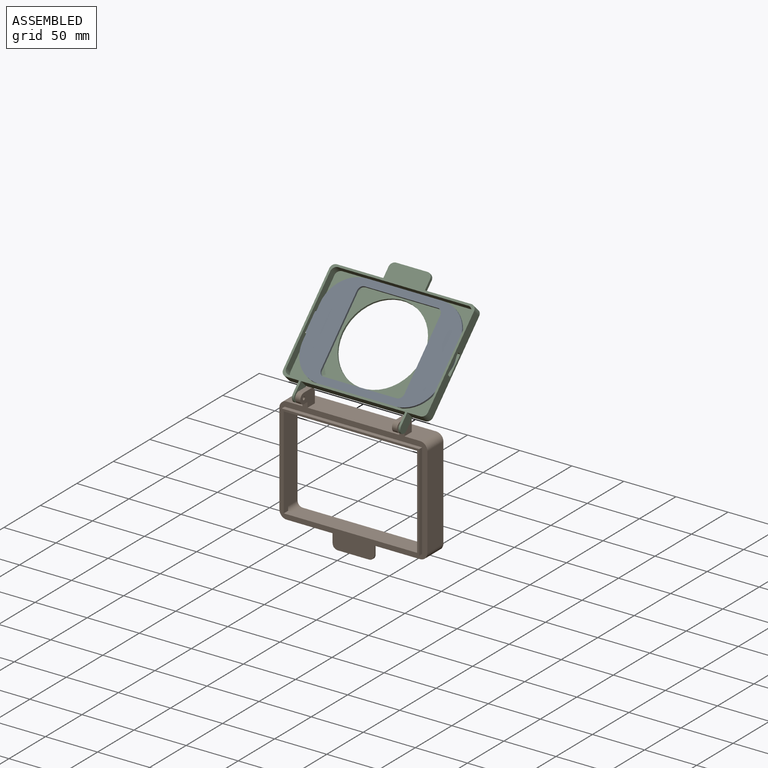
[diagram: assembled view]
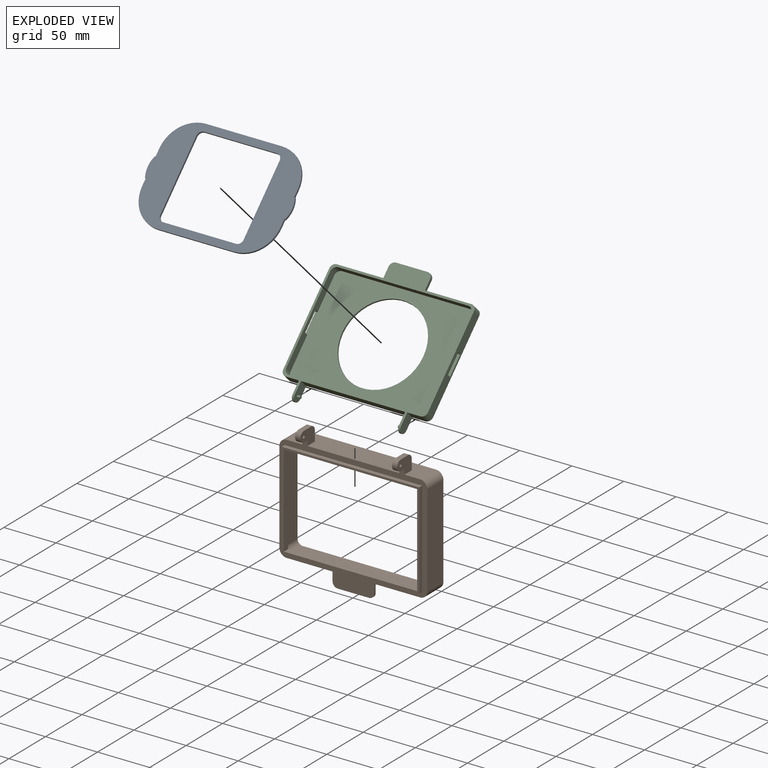
[diagram: exploded view]
GUIDED TOUR — MATED ASSEMBLY (Onshape document 4a9b68949fbbeb46d2230906, AutoMate assembly 4a9b68949fbbeb46d2230906_c47c5c0a0e4a723a2216a127_96fbe044a2d722a06e7ecc93_default)

This assembly has 3 components, labeled P0..P2 below (a component is one placed occurrence of a part; the same part can appear more than once), held together by 2 mates. A mate is a constraint between two components; its type names the relative motion it leaves free:
  FASTENED — locks the two components together rigidly (no relative motion),
  REVOLUTE — leaves rotation about the listed axis free (a hinge).
Axis/direction vectors are unit vectors and 'through' points are millimeter coordinates, both in the assembly's world frame.

MATES
  1. FASTENED "Fastened 1": P2 <-> P0, direction (0.000, -0.710, 0.704) through (0.46, 40.32, 101.63) mm
  2. REVOLUTE "Revolute 1": P1 <-> P2, axis (1.000, 0.000, 0.000) through (49.46, -4.92, 60.23) mm

ASSEMBLY ORDER
  1. P2 — the base component [order verified]
  2. P1 [order verified]
  3. P0 [order verified]
Order-tag legend:
  [order verified] — this step's position reverses a verified removal order: the component was checked to insert without passing through the ones already placed.

Of the 3 components, 2 carry the full construction recipe — the FeatureScript program that regenerates the part's solid from scratch; the rest are supplied as boundary geometry only.
Each toured component is shown spotlighted twice — in the assembled view, then in the exploded view, where a leader line traces a displaced component back to its assembled socket (saturated green if recipe-attached, orange if geometry-only; every other component desaturated gray) — followed by its recipe or geometry summary and the mates that hold it.
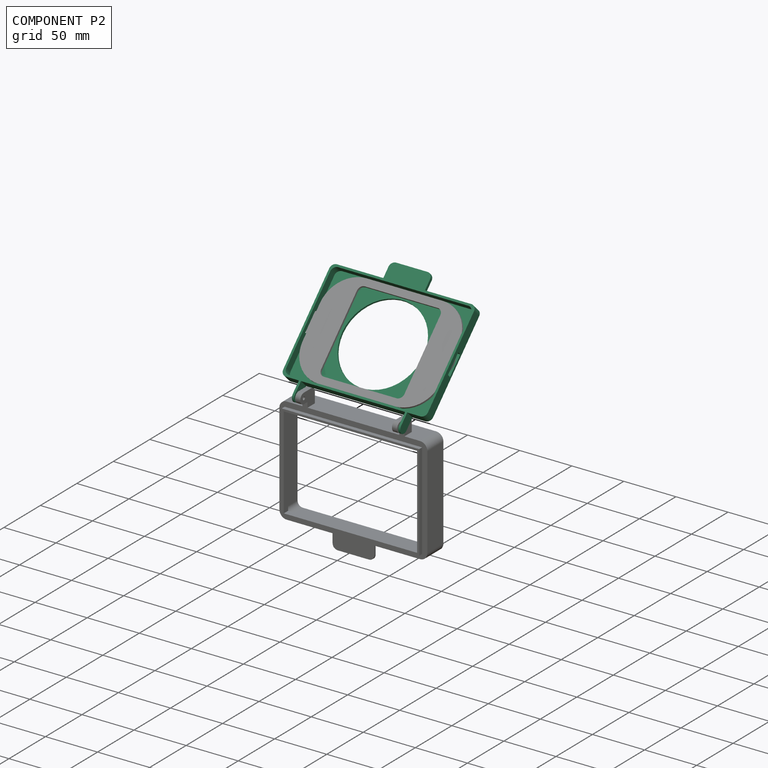
[diagram: component P2 — assembled]
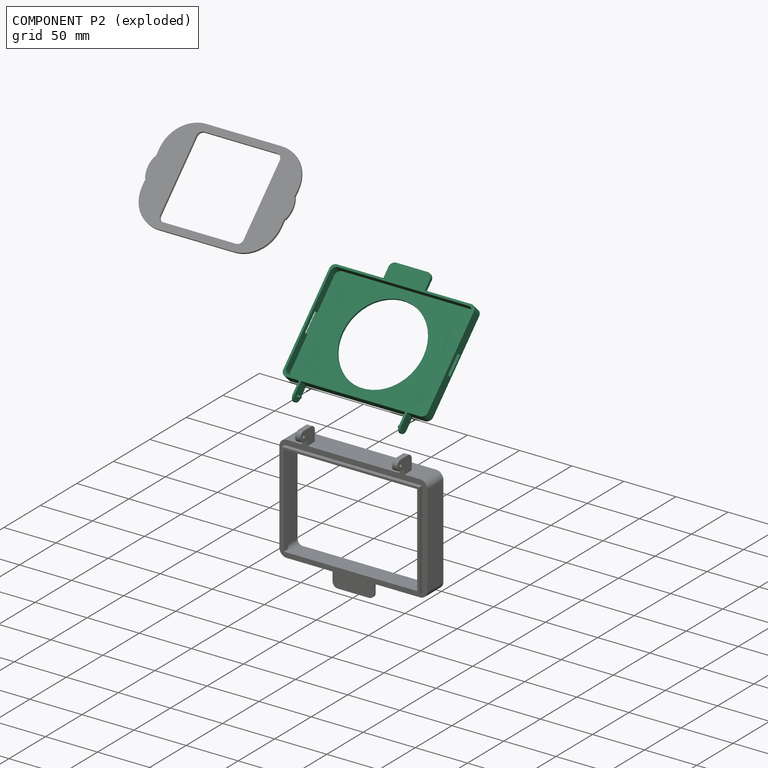
[diagram: component P2 — exploded]
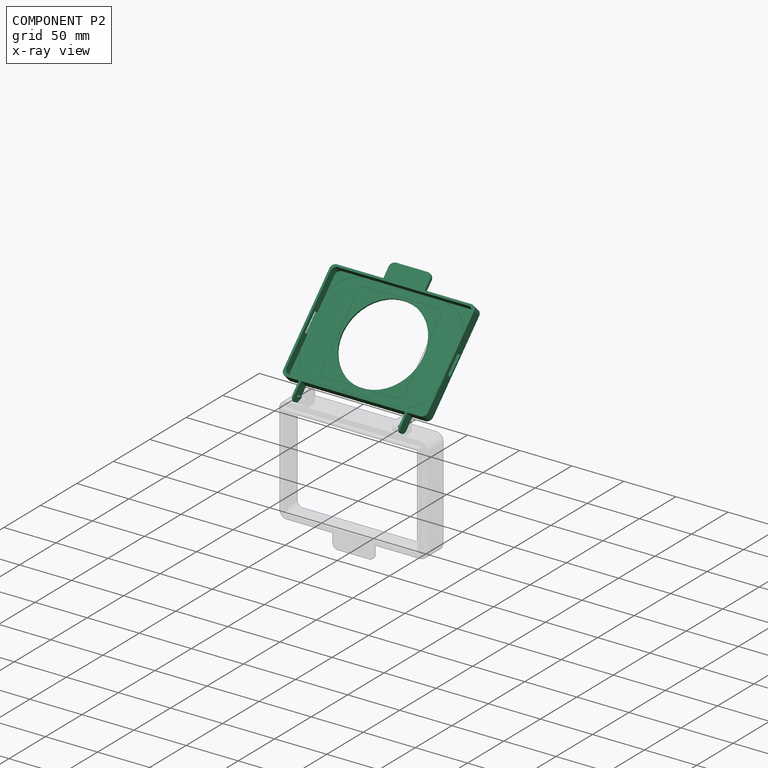
[diagram: component P2 — x-ray view]
COMPONENT P2 — recipe-attached (CADFS 00177686, mesh-verified: the recipe's output STEP matches this component's geometry to below the mesh-comparison resolution (tessellation chordal tolerance ~0.287 mm)).
Held by: FASTENED mate "Fastened 1" to P0; REVOLUTE mate "Revolute 1" to P1.
Construction recipe (FeatureScript — the CAD program that rebuilds this solid; sketch coordinates are in the units given by the * unit suffixes, e.g. mm):

FeatureScript 1511;
import(path : "onshape/std/geometry.fs", version : "1511.0");
import(path : "onshape/std/common.fs", version : "1511.0");
const mm = millimeter;
const VERTEX = EntityType.VERTEX;
const EDGE = EntityType.EDGE;
const FACE = EntityType.FACE;
const BODY = EntityType.BODY;
function v(x, y){return vector(x, y);}
function OD(order){return orderDisambiguation(order);}
function OSD(set){return originalSetDisambiguation(set);}
function TD(topology){return topologyDisambiguation(topology);}
function TDD(query){return trueDependencyDisambiguation(query);}
function sQuery(a, b, c) {return sketchEntityQuery(a, b, c);}

annotation { "Feature Type Name" : "Feature", "Feature Type Description" : "" }
export const myFeature = defineFeature(function(context is Context, id is Id, definition is map)
    precondition{}
    {
        {
            var Q0;
            Q0=qCreatedBy(makeId("Top.planeOp"),FACE);
            var sketch = newSketch(context, id + "F0", { "sketchPlane" : qUnion([Q0])});
            skLineSegment(sketch, "E0.bottom", {"start": v(62.5, 47.75) * mm, "end": v(-62.5, 47.75) * mm});
            skLineSegment(sketch, "E0.top", {"start": v(62.5, -47.75) * mm, "end": v(-62.5, -47.75) * mm});
            skLineSegment(sketch, "E0.left", {"start": v(67.5, 42.75) * mm, "end": v(67.5, -42.75) * mm});
            skLineSegment(sketch, "E0.right", {"start": v(-67.5, 42.75) * mm, "end": v(-67.5, -42.75) * mm});
            skPoint(sketch, "E0.middle", {"position": v(0, 0) * mm});
            skLineSegment(sketch, "E1.0", {"start": v(64.5, 49.75) * mm, "end": v(-64.5, 49.75) * mm});
            skLineSegment(sketch, "E1.1", {"start": v(69.5, 44.75) * mm, "end": v(69.5, -44.75) * mm});
            skLineSegment(sketch, "E1.2", {"start": v(64.5, -49.75) * mm, "end": v(-64.5, -49.75) * mm});
            skLineSegment(sketch, "E1.3", {"start": v(-69.5, 44.75) * mm, "end": v(-69.5, -44.75) * mm});
            skPoint(sketch, "E2.visualSharp", {"position": v(-69.5, -49.75) * mm});
            skArc(sketch, "E2.filletArc", {"start": v(-69.5, -44.75) * mm, "mid": v(-68.04, -48.29) * mm, "end": v(-64.5, -49.75) * mm});
            skPoint(sketch, "E3.visualSharp", {"position": v(-69.5, 49.75) * mm});
            skArc(sketch, "E3.filletArc", {"start": v(-64.5, 49.75) * mm, "mid": v(-68.04, 48.29) * mm, "end": v(-69.5, 44.75) * mm});
            skPoint(sketch, "E4.visualSharp", {"position": v(69.5, -49.75) * mm});
            skArc(sketch, "E4.filletArc", {"start": v(64.5, -49.75) * mm, "mid": v(68.04, -48.29) * mm, "end": v(69.5, -44.75) * mm});
            skPoint(sketch, "E5.visualSharp", {"position": v(69.5, 49.75) * mm});
            skArc(sketch, "E5.filletArc", {"start": v(69.5, 44.75) * mm, "mid": v(68.04, 48.29) * mm, "end": v(64.5, 49.75) * mm});
            skPoint(sketch, "E6.visualSharp", {"position": v(67.5, 47.75) * mm});
            skArc(sketch, "E6.filletArc", {"start": v(67.5, 42.75) * mm, "mid": v(66.04, 46.29) * mm, "end": v(62.5, 47.75) * mm});
            skPoint(sketch, "E7.visualSharp", {"position": v(67.5, -47.75) * mm});
            skArc(sketch, "E7.filletArc", {"start": v(62.5, -47.75) * mm, "mid": v(66.04, -46.29) * mm, "end": v(67.5, -42.75) * mm});
            skPoint(sketch, "E8.visualSharp", {"position": v(-67.5, 47.75) * mm});
            skArc(sketch, "E8.filletArc", {"start": v(-62.5, 47.75) * mm, "mid": v(-66.04, 46.29) * mm, "end": v(-67.5, 42.75) * mm});
            skPoint(sketch, "E9.visualSharp", {"position": v(-67.5, -47.75) * mm});
            skArc(sketch, "E9.filletArc", {"start": v(-67.5, -42.75) * mm, "mid": v(-66.04, -46.29) * mm, "end": v(-62.5, -47.75) * mm});
            skCircle(sketch, "E10", {"center": v(0, 0) * mm, "radius": 39 * mm});
            skSolve(sketch);
        }
        {
            var Q0;
            Q0=makeQuery(id+"F0.imprint","IMPRINT",FACE,{"disambiguationData":[TD([[makeQuery(id+"F0.imprint","IMPRINT",EDGE,{"derivedFrom":sQuery(id+"F0.wireOp",EDGE,"E0.bottom")}),-1.0]])]});
            extrude(context, id + "F1", {"entities" : qUnion([Q0]), "depth" : 10 * mm});
        }
        {
            var Q0;
            Q0=makeQuery(id+"F0.imprint","IMPRINT",FACE,{"disambiguationData":[TD([[makeQuery(id+"F0.imprint","IMPRINT",EDGE,{"derivedFrom":sQuery(id+"F0.wireOp",EDGE,"E0.bottom")}),1.0]])]});
            extrude(context, id + "F2", {"entities" : qUnion([Q0]), "operationType" : NewBodyOperationType.ADD, "depth" : 2 * mm});
        }
        {
            var Q0;
            Q0=makeQuery(id+"F1.opExtrude","CAP_FACE",FACE,{"disambiguationData":[OSD([sQuery(id+"F0.wireOp",EDGE,"E0.bottom"),sQuery(id+"F0.wireOp",EDGE,"E0.top"),sQuery(id+"F0.wireOp",EDGE,"E0.left"),sQuery(id+"F0.wireOp",EDGE,"E0.right"),sQuery(id+"F0.wireOp",EDGE,"E1.0"),sQuery(id+"F0.wireOp",EDGE,"E1.1"),sQuery(id+"F0.wireOp",EDGE,"E1.2"),sQuery(id+"F0.wireOp",EDGE,"E1.3")])],"isStart":false});
            var sketch = newSketch(context, id + "F3", { "sketchPlane" : qUnion([Q0])});
            skLineSegment(sketch, "E11.bottom", {"start": v(-20, -49.75) * mm, "end": v(20, -49.75) * mm});
            skLineSegment(sketch, "E11.top", {"start": v(-15, -64.75) * mm, "end": v(15, -64.75) * mm});
            skLineSegment(sketch, "E11.left", {"start": v(-20, -49.75) * mm, "end": v(-20, -59.75) * mm});
            skLineSegment(sketch, "E11.right", {"start": v(20, -49.75) * mm, "end": v(20, -59.75) * mm});
            skPoint(sketch, "E12", {"position": v(0, -49.75) * mm});
            skPoint(sketch, "E13.visualSharp", {"position": v(-20, -64.75) * mm});
            skArc(sketch, "E13.filletArc", {"start": v(-20, -59.75) * mm, "mid": v(-18.54, -63.29) * mm, "end": v(-15, -64.75) * mm});
            skPoint(sketch, "E14.visualSharp", {"position": v(20, -64.75) * mm});
            skArc(sketch, "E14.filletArc", {"start": v(15, -64.75) * mm, "mid": v(18.54, -63.29) * mm, "end": v(20, -59.75) * mm});
            skSolve(sketch);
        }
        {
            var Q0;
            Q0=makeQuery(id+"F3.imprint","IMPRINT",FACE,{"disambiguationData":[TD([[makeQuery(id+"F3.imprint","IMPRINT",EDGE,{"derivedFrom":sQuery(id+"F3.wireOp",EDGE,"E11.bottom")}),1.0]])]});
            extrude(context, id + "F4", {"entities" : qUnion([Q0]), "operationType" : NewBodyOperationType.ADD, "oppositeDirection" : true, "depth" : 3 * mm});
        }
        {
            var Q0;
            Q0=makeQuery(id+"F1.opExtrude","SWEPT_FACE",FACE,{"disambiguationData":[OSD([sQuery(id+"F0.wireOp",EDGE,"E0.right")])]});
            var sketch = newSketch(context, id + "F5", { "sketchPlane" : qUnion([Q0])});
            skLineSegment(sketch, "E15.bottom", {"start": v(-10, 2) * mm, "end": v(10, 2) * mm});
            skLineSegment(sketch, "E15.top", {"start": v(-10, 6) * mm, "end": v(10, 6) * mm});
            skLineSegment(sketch, "E15.left", {"start": v(-10, 2) * mm, "end": v(-10, 6) * mm});
            skLineSegment(sketch, "E15.right", {"start": v(10, 2) * mm, "end": v(10, 6) * mm});
            skPoint(sketch, "E16", {"position": v(0, 2) * mm});
            skSolve(sketch);
        }
        {
            var Q0;
            Q0=makeQuery(id+"F5.imprint","IMPRINT",FACE,{"disambiguationData":[TD([[makeQuery(id+"F5.imprint","IMPRINT",EDGE,{"derivedFrom":sQuery(id+"F5.wireOp",EDGE,"E15.bottom")}),-1.0]])]});
            extrude(context, id + "F6", {"entities" : qUnion([Q0]), "operationType" : NewBodyOperationType.REMOVE, "endBound" : BoundingType.UP_TO_NEXT, "oppositeDirection" : true, "depth" : 25 * mm});
        }
        {
            var Q0;
            Q0=makeQuery(id+"F1.opExtrude","SWEPT_FACE",FACE,{"disambiguationData":[OSD([sQuery(id+"F0.wireOp",EDGE,"E0.left")])]});
            var sketch = newSketch(context, id + "F7", { "sketchPlane" : qUnion([Q0])});
            skLineSegment(sketch, "E17.0", {"start": v(10, 6) * mm, "end": v(10, 2) * mm});
            skLineSegment(sketch, "E18.0", {"start": v(10, 2) * mm, "end": v(-10, 2) * mm});
            skLineSegment(sketch, "E19.0", {"start": v(-10, 6) * mm, "end": v(10, 6) * mm});
            skLineSegment(sketch, "E20.0", {"start": v(-10, 6) * mm, "end": v(-10, 2) * mm});
            skSolve(sketch);
        }
        {
            var Q0;
            Q0=makeQuery(id+"F7.imprint","IMPRINT",FACE,{"disambiguationData":[TD([[makeQuery(id+"F7.imprint","IMPRINT",EDGE,{"derivedFrom":sQuery(id+"F7.wireOp",EDGE,"E17.0")}),-1.0]])]});
            extrude(context, id + "F8", {"entities" : qUnion([Q0]), "operationType" : NewBodyOperationType.REMOVE, "endBound" : BoundingType.UP_TO_NEXT, "oppositeDirection" : true, "depth" : 25 * mm});
        }
        {
            var Q0;
            Q0=makeQuery(id+"F1.opExtrude","SWEPT_FACE",FACE,{"disambiguationData":[OSD([sQuery(id+"F0.wireOp",EDGE,"E1.0")])]});
            var sketch = newSketch(context, id + "F9", { "sketchPlane" : qUnion([Q0])});
            skLineSegment(sketch, "E21.bottom", {"start": v(52, 0) * mm, "end": v(50, 0) * mm});
            skLineSegment(sketch, "E21.top", {"start": v(52, 10) * mm, "end": v(50, 10) * mm});
            skLineSegment(sketch, "E21.left", {"start": v(52, 0) * mm, "end": v(52, 10) * mm});
            skLineSegment(sketch, "E21.right", {"start": v(50, 0) * mm, "end": v(50, 10) * mm});
            skSolve(sketch);
        }
        {
            var Q0;
            Q0=makeQuery(id+"F9.imprint","IMPRINT",FACE,{"disambiguationData":[TD([[makeQuery(id+"F9.imprint","IMPRINT",EDGE,{"derivedFrom":sQuery(id+"F9.wireOp",EDGE,"E21.bottom")}),1.0]])]});
            var Q1;
            {var subQ0=sQuery(id+"F9.wireOp",EDGE,"c59233ef-eaf8-4a60-9904-21551acb0b020.MirrorCS");Q1=makeQuery(id+"F9.imprint","IMPRINT",FACE,{"disambiguationData":[TD([[makeQuery(id+"F9.imprint","IMPRINT",EDGE,{"derivedFrom":subQ0}),1.0]])]});}
            extrude(context, id + "F10", {"entities" : qUnion([Q0, Q1]), "operationType" : NewBodyOperationType.ADD, "depth" : 11.5 * mm});
        }
        {
            var Q0;
            Q0=makeQuery(id+"F10.opExtrude","SWEPT_FACE",FACE,{"disambiguationData":[OSD([sQuery(id+"F9.wireOp",EDGE,"E21.left")])]});
            var sketch = newSketch(context, id + "F11", { "sketchPlane" : qUnion([Q0])});
            skPoint(sketch, "E22", {"position": v(-61.25, 5) * mm});
            skCircle(sketch, "E23", {"center": v(-61.25, 5) * mm, "radius": 5 * mm});
            skSolve(sketch);
        }
        {
            var Q0;
            {var subQ1=sQuery(id+"F9.wireOp",EDGE,"E21.left");var subQ2=makeQuery(id+"F10.opExtrude","CAP_EDGE",EDGE,{"disambiguationData":[OSD([subQ1])],"isStart":false});Q0=makeQuery(id+"F11.imprint","IMPRINT",FACE,{"disambiguationData":[TD([[makeQuery(id+"F11.imprint","IMPRINT",EDGE,{"derivedFrom":subQ2}),1.0]])]});}
            extrude(context, id + "F12", {"entities" : qUnion([Q0]), "operationType" : NewBodyOperationType.ADD, "oppositeDirection" : true, "depth" : 2 * mm});
        }
        {
            var Q0;
            Q0=makeQuery(id+"F12.boolean.opBoolean","MERGE",FACE,{"derivedFrom":[makeQuery(id+"F10.opExtrude","SWEPT_FACE",FACE,{"disambiguationData":[OSD([sQuery(id+"F9.wireOp",EDGE,"E21.right")])]}),makeQuery(id+"F12.opExtrude","CAP_FACE",FACE,{"disambiguationData":[OSD([sQuery(id+"F9.wireOp",EDGE,"E21.left"),sQuery(id+"F11.wireOp",EDGE,"E23")])],"isStart":false})]});
            var sketch = newSketch(context, id + "F13", { "sketchPlane" : qUnion([Q0])});
            skCircle(sketch, "E24", {"center": v(61.25, 5) * mm, "radius": 1.25 * mm});
            skSolve(sketch);
        }
        {
            var Q0;
            Q0 = qSketchRegion(id + "F13", true);
            extrude(context, id + "F14", {"entities" : qUnion([Q0]), "operationType" : NewBodyOperationType.ADD, "depth" : 3 * mm});
        }
        {
            var Q0;
            Q0=qCreatedBy(makeId("Right.planeOp"),FACE);
            cPlane(context, id + "F15", {"entities" : qUnion([Q0]), "cplaneType" : CPlaneType.OFFSET, "offset" : 52 * mm, "width" : 150 * mm, "height" : 150 * mm});
        }
        {
            var Q0;
            Q0=qCreatedBy(id+"F15.planeOp",FACE);
            var sketch = newSketch(context, id + "F16", { "sketchPlane" : qUnion([Q0])});
            skLineSegment(sketch, "E25.0.0", {"start": v(49.75, 10) * mm, "end": v(49.75, 0) * mm});
            skLineSegment(sketch, "E25.0.1", {"start": v(49.75, 0) * mm, "end": v(61.25, 0) * mm});
            skArc(sketch, "E25.0.2", {"start": v(61.25, 0) * mm, "mid": v(66.25, 5) * mm, "end": v(61.25, 10) * mm});
            skLineSegment(sketch, "E25.0.3", {"start": v(61.25, 10) * mm, "end": v(49.75, 10) * mm});
            skCircle(sketch, "E26.0", {"center": v(61.25, 5) * mm, "radius": 1.25 * mm});
            skSolve(sketch);
        }
        {
            var Q0;
            Q0 = qSketchRegion(id + "F16", true);
            extrude(context, id + "F17", {"entities" : qUnion([Q0]), "operationType" : NewBodyOperationType.ADD, "oppositeDirection" : true, "depth" : 2 * mm});
        }
        {
            var Q0;
            Q0=makeQuery(id+"F16.imprint","IMPRINT",FACE,{"disambiguationData":[TD([[makeQuery(id+"F16.imprint","IMPRINT",EDGE,{"derivedFrom":sQuery(id+"F16.wireOp",EDGE,"E26.0")}),1.0]])]});
            extrude(context, id + "F18", {"entities" : qUnion([Q0]), "operationType" : NewBodyOperationType.ADD, "oppositeDirection" : true, "depth" : 5 * mm});
        }
    });
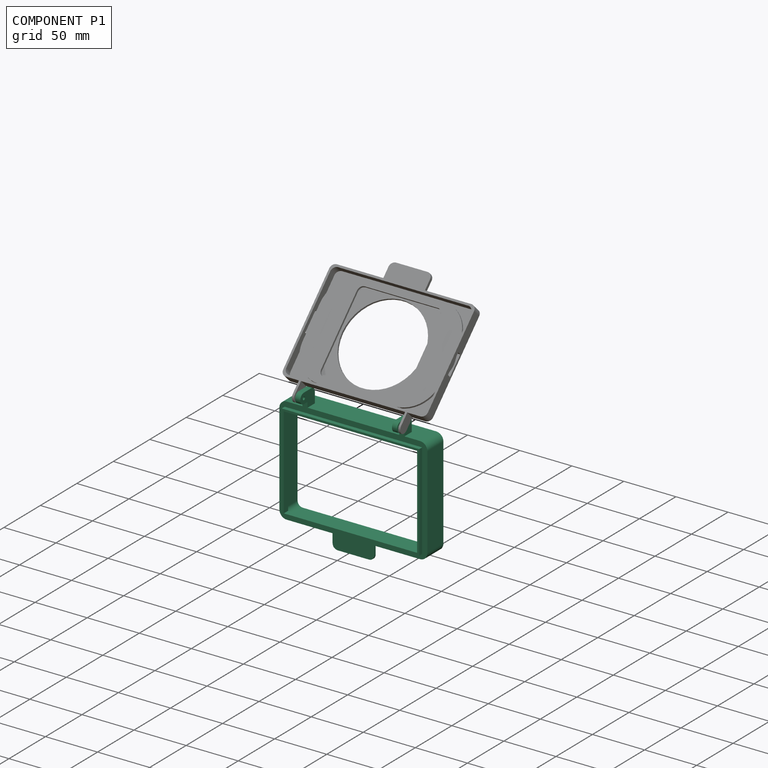
[diagram: component P1 — assembled]
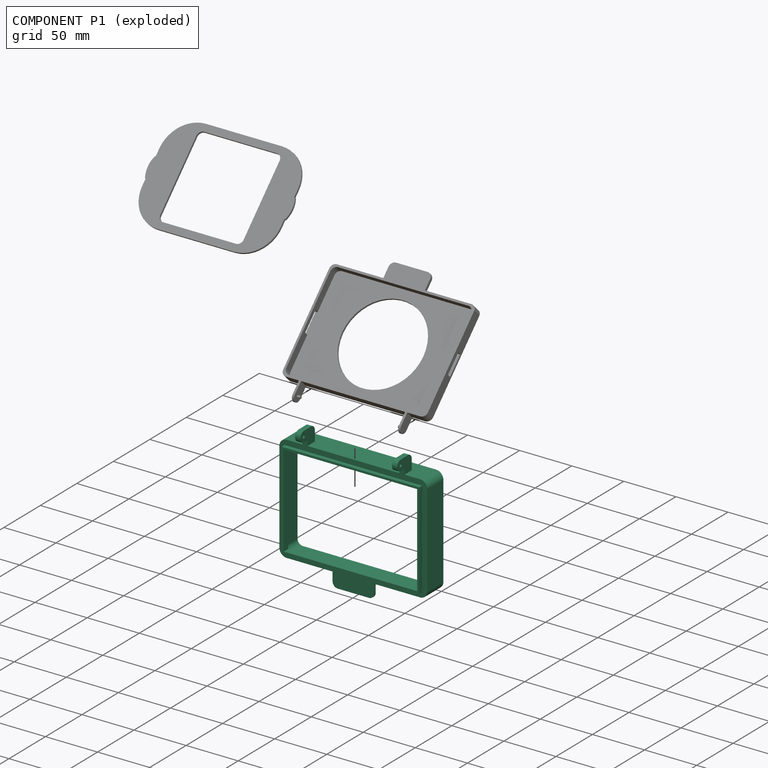
[diagram: component P1 — exploded]
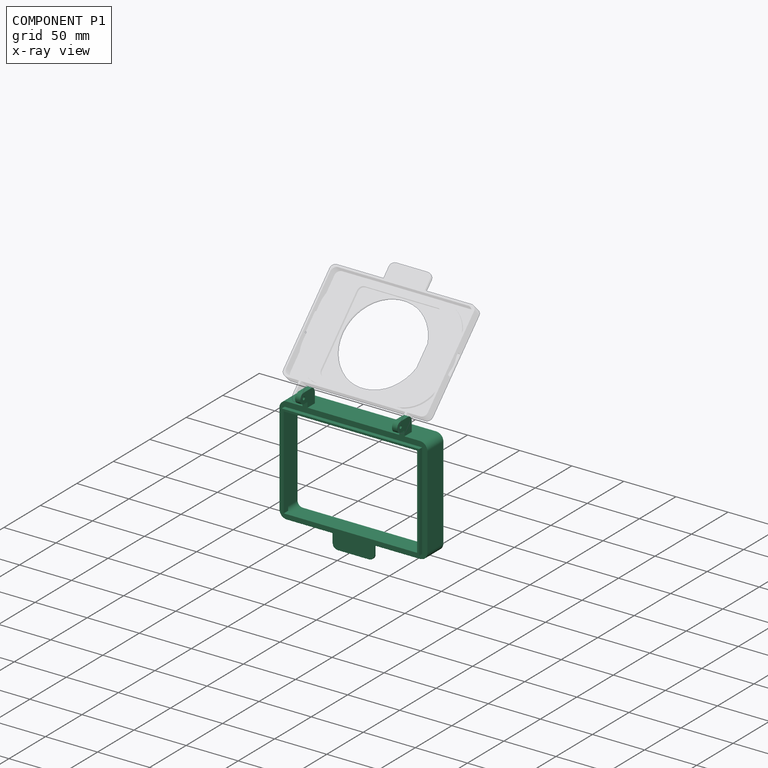
[diagram: component P1 — x-ray view]
COMPONENT P1 — recipe-attached (CADFS 00177685, mesh-verified: the recipe's output STEP matches this component's geometry to below the mesh-comparison resolution (tessellation chordal tolerance ~0.294 mm)).
Held by: REVOLUTE mate "Revolute 1" to P2.
Construction recipe (FeatureScript — the CAD program that rebuilds this solid; sketch coordinates are in the units given by the * unit suffixes, e.g. mm):

FeatureScript 1511;
import(path : "onshape/std/geometry.fs", version : "1511.0");
import(path : "onshape/std/common.fs", version : "1511.0");
const mm = millimeter;
const VERTEX = EntityType.VERTEX;
const EDGE = EntityType.EDGE;
const FACE = EntityType.FACE;
const BODY = EntityType.BODY;
function v(x, y){return vector(x, y);}
function OD(order){return orderDisambiguation(order);}
function OSD(set){return originalSetDisambiguation(set);}
function TD(topology){return topologyDisambiguation(topology);}
function TDD(query){return trueDependencyDisambiguation(query);}
function sQuery(a, b, c) {return sketchEntityQuery(a, b, c);}

annotation { "Feature Type Name" : "Feature", "Feature Type Description" : "" }
export const myFeature = defineFeature(function(context is Context, id is Id, definition is map)
    precondition{}
    {
        {
            var Q0;
            Q0=qCreatedBy(makeId("Top.planeOp"),FACE);
            var sketch = newSketch(context, id + "F0", { "sketchPlane" : qUnion([Q0])});
            skLineSegment(sketch, "E0.bottom", {"start": v(64, 49.25) * mm, "end": v(-64, 49.25) * mm});
            skLineSegment(sketch, "E0.top", {"start": v(64, -49.25) * mm, "end": v(-64, -49.25) * mm});
            skLineSegment(sketch, "E0.left", {"start": v(69, 44.25) * mm, "end": v(69, -44.25) * mm});
            skLineSegment(sketch, "E0.right", {"start": v(-69, 44.25) * mm, "end": v(-69, -44.25) * mm});
            skPoint(sketch, "E0.middle", {"position": v(0, 0) * mm});
            skPoint(sketch, "E1.visualSharp", {"position": v(-69, 49.25) * mm});
            skArc(sketch, "E1.filletArc", {"start": v(-64, 49.25) * mm, "mid": v(-67.54, 47.79) * mm, "end": v(-69, 44.25) * mm});
            skPoint(sketch, "E2.visualSharp", {"position": v(-69, -49.25) * mm});
            skArc(sketch, "E2.filletArc", {"start": v(-69, -44.25) * mm, "mid": v(-67.54, -47.79) * mm, "end": v(-64, -49.25) * mm});
            skPoint(sketch, "E3.visualSharp", {"position": v(69, -49.25) * mm});
            skArc(sketch, "E3.filletArc", {"start": v(64, -49.25) * mm, "mid": v(67.54, -47.79) * mm, "end": v(69, -44.25) * mm});
            skPoint(sketch, "E4.visualSharp", {"position": v(69, 49.25) * mm});
            skArc(sketch, "E4.filletArc", {"start": v(69, 44.25) * mm, "mid": v(67.54, 47.79) * mm, "end": v(64, 49.25) * mm});
            skArc(sketch, "E5.0", {"start": v(71, 44.25) * mm, "mid": v(68.95, 49.2) * mm, "end": v(64, 51.25) * mm});
            skLineSegment(sketch, "E5.1", {"start": v(71, 44.25) * mm, "end": v(71, -44.25) * mm});
            skLineSegment(sketch, "E5.2", {"start": v(64, 51.25) * mm, "end": v(-64, 51.25) * mm});
            skArc(sketch, "E5.3", {"start": v(64, -51.25) * mm, "mid": v(68.95, -49.2) * mm, "end": v(71, -44.25) * mm});
            skArc(sketch, "E5.4", {"start": v(-64, 51.25) * mm, "mid": v(-68.95, 49.2) * mm, "end": v(-71, 44.25) * mm});
            skLineSegment(sketch, "E5.5", {"start": v(-71, 44.25) * mm, "end": v(-71, -44.25) * mm});
            skArc(sketch, "E5.6", {"start": v(-71, -44.25) * mm, "mid": v(-68.95, -49.2) * mm, "end": v(-64, -51.25) * mm});
            skLineSegment(sketch, "E5.7", {"start": v(64, -51.25) * mm, "end": v(-64, -51.25) * mm});
            skLineSegment(sketch, "E6.0", {"start": v(66, 46.25) * mm, "end": v(-66, 46.25) * mm});
            skLineSegment(sketch, "E6.1", {"start": v(66, 46.25) * mm, "end": v(66, -46.25) * mm});
            skLineSegment(sketch, "E6.2", {"start": v(66, -46.25) * mm, "end": v(-66, -46.25) * mm});
            skLineSegment(sketch, "E6.3", {"start": v(-66, 46.25) * mm, "end": v(-66, -46.25) * mm});
            skLineSegment(sketch, "E7.bottom", {"start": v(-15, -64.75) * mm, "end": v(15, -64.75) * mm});
            skLineSegment(sketch, "E7.left", {"start": v(-20, -59.75) * mm, "end": v(-20, -51.25) * mm});
            skLineSegment(sketch, "E7.right", {"start": v(20, -59.75) * mm, "end": v(20, -51.25) * mm});
            skPoint(sketch, "E7.middle", {"position": v(0, -51.25) * mm});
            skPoint(sketch, "E8.visualSharp", {"position": v(-20, -64.75) * mm});
            skArc(sketch, "E8.filletArc", {"start": v(-20, -59.75) * mm, "mid": v(-18.54, -63.29) * mm, "end": v(-15, -64.75) * mm});
            skPoint(sketch, "E9.visualSharp", {"position": v(20, -64.75) * mm});
            skArc(sketch, "E9.filletArc", {"start": v(15, -64.75) * mm, "mid": v(18.54, -63.29) * mm, "end": v(20, -59.75) * mm});
            skLineSegment(sketch, "E10.0", {"start": v(64, 44.25) * mm, "end": v(-64, 44.25) * mm});
            skLineSegment(sketch, "E10.1", {"start": v(64, 44.25) * mm, "end": v(64, -44.25) * mm});
            skLineSegment(sketch, "E10.2", {"start": v(64, -44.25) * mm, "end": v(-64, -44.25) * mm});
            skLineSegment(sketch, "E10.3", {"start": v(-64, 44.25) * mm, "end": v(-64, -44.25) * mm});
            skSolve(sketch);
        }
        {
            var Q0;
            Q0=makeQuery(id+"F0.imprint","IMPRINT",FACE,{"disambiguationData":[TD([[makeQuery(id+"F0.imprint","IMPRINT",EDGE,{"derivedFrom":sQuery(id+"F0.wireOp",EDGE,"E0.bottom")}),-1.0]])]});
            extrude(context, id + "F1", {"entities" : qUnion([Q0]), "oppositeDirection" : true, "depth" : 20 * mm});
        }
        {
            var Q0;
            Q0=makeQuery(id+"F0.imprint","IMPRINT",FACE,{"disambiguationData":[TD([[makeQuery(id+"F0.imprint","IMPRINT",EDGE,{"derivedFrom":sQuery(id+"F0.wireOp",EDGE,"E7.bottom")}),1.0]])]});
            var Q1;
            Q1=makeQuery(id+"F0.imprint","IMPRINT",FACE,{"disambiguationData":[TD([[makeQuery(id+"F0.imprint","IMPRINT",EDGE,{"derivedFrom":sQuery(id+"F0.wireOp",EDGE,"E0.bottom")}),-1.0]])]});
            var Q2;
            Q2=makeQuery(id+"F0.imprint","IMPRINT",FACE,{"disambiguationData":[TD([[makeQuery(id+"F0.imprint","IMPRINT",EDGE,{"derivedFrom":sQuery(id+"F0.wireOp",EDGE,"E0.bottom")}),1.0]])]});
            extrude(context, id + "F2", {"entities" : qUnion([Q0, Q1, Q2]), "operationType" : NewBodyOperationType.ADD, "depth" : 2 * mm});
        }
        {
            var Q0;
            Q0=makeQuery(id+"F0.imprint","IMPRINT",FACE,{"disambiguationData":[TD([[makeQuery(id+"F0.imprint","IMPRINT",EDGE,{"derivedFrom":sQuery(id+"F0.wireOp",EDGE,"E6.0")}),1.0]])]});
            extrude(context, id + "F3", {"entities" : qUnion([Q0]), "operationType" : NewBodyOperationType.ADD, "depth" : 6 * mm});
        }
        {
            var Q0;
            {var subQ0=sQuery(id+"F0.wireOp",EDGE,"E5.2");Q0=makeQuery(id+"F2.boolean.opBoolean","MERGE",FACE,{"derivedFrom":[makeQuery(id+"F1.opExtrude","SWEPT_FACE",FACE,{"disambiguationData":[OSD([subQ0])]}),makeQuery(id+"F2.opExtrude","SWEPT_FACE",FACE,{"disambiguationData":[OSD([subQ0])]})]});}
            var sketch = newSketch(context, id + "F4", { "sketchPlane" : qUnion([Q0])});
            skLineSegment(sketch, "E11.MirrorCS", {"start": v(-44, 2) * mm, "end": v(-44, -8) * mm});
            skLineSegment(sketch, "E12.MirrorCS", {"start": v(-49, -8) * mm, "end": v(-44, -8) * mm});
            skLineSegment(sketch, "E13.MirrorCS", {"start": v(-49, 2) * mm, "end": v(-49, -8) * mm});
            skSolve(sketch);
        }
        {
            var Q0;
            Q0 = qSketchRegion(id + "F4", true);
            var Q1;
            {var subQ0=sQuery(id+"F4.wireOp",EDGE,"E11.MirrorCS");Q1=makeQuery(id+"F4.imprint","IMPRINT",FACE,{"disambiguationData":[TD([[makeQuery(id+"F4.imprint","IMPRINT",EDGE,{"derivedFrom":subQ0}),-1.0]])]});}
            extrude(context, id + "F5", {"entities" : qUnion([Q0, Q1]), "operationType" : NewBodyOperationType.ADD, "depth" : 10 * mm});
        }
        {
            var Q0;
            Q0=makeQuery(id+"F5.opExtrude","SWEPT_FACE",FACE,{"disambiguationData":[OSD([sQuery(id+"F4.wireOp",EDGE,"E13.MirrorCS")])]});
            var sketch = newSketch(context, id + "F6", { "sketchPlane" : qUnion([Q0])});
            skLineSegment(sketch, "E14.bottom", {"start": v(61.25, -8) * mm, "end": v(61.25, -8) * mm});
            skLineSegment(sketch, "E14.top", {"start": v(61.25, 12) * mm, "end": v(61.25, 12) * mm});
            skLineSegment(sketch, "E14.left", {"start": v(61.25, -8) * mm, "end": v(61.25, 12) * mm});
            skLineSegment(sketch, "E14.right", {"start": v(66.25, -3) * mm, "end": v(66.25, 7) * mm});
            skLineSegment(sketch, "E15.top", {"start": v(61.25, 2) * mm, "end": v(56.25, 2) * mm});
            skLineSegment(sketch, "E15.left", {"start": v(61.25, 12) * mm, "end": v(61.25, 2) * mm});
            skLineSegment(sketch, "E15.right", {"start": v(56.25, 7) * mm, "end": v(56.25, 2) * mm});
            skPoint(sketch, "E16", {"position": v(61.25, 7) * mm});
            skCircle(sketch, "E17", {"center": v(61.25, 7) * mm, "radius": 1.5 * mm});
            skPoint(sketch, "E18.visualSharp", {"position": v(56.25, 12) * mm});
            skArc(sketch, "E18.filletArc", {"start": v(61.25, 12) * mm, "mid": v(57.71, 10.54) * mm, "end": v(56.25, 7) * mm});
            skPoint(sketch, "E19.visualSharp", {"position": v(66.25, 12) * mm});
            skArc(sketch, "E19.filletArc", {"start": v(66.25, 7) * mm, "mid": v(64.79, 10.54) * mm, "end": v(61.25, 12) * mm});
            skPoint(sketch, "E20.visualSharp", {"position": v(66.25, -8) * mm});
            skArc(sketch, "E20.filletArc", {"start": v(61.25, -8) * mm, "mid": v(64.79, -6.54) * mm, "end": v(66.25, -3) * mm});
            skSolve(sketch);
        }
        {
            var Q0;
            Q0 = qSketchRegion(id + "F6", true);
            extrude(context, id + "F7", {"entities" : qUnion([Q0]), "operationType" : NewBodyOperationType.ADD, "oppositeDirection" : true, "depth" : 5 * mm});
        }
        {
            var Q0;
            Q0=qCreatedBy(makeId("Right.planeOp"),FACE);
            cPlane(context, id + "F8", {"entities" : qUnion([Q0]), "cplaneType" : CPlaneType.OFFSET, "offset" : 49 * mm, "oppositeDirection" : true, "width" : 150 * mm, "height" : 150 * mm});
        }
        {
            var Q0;
            Q0=qCreatedBy(id+"F8.planeOp",FACE);
            var sketch = newSketch(context, id + "F9", { "sketchPlane" : qUnion([Q0])});
            skLineSegment(sketch, "E21.0.0", {"start": v(51.25, 2) * mm, "end": v(56.25, 2) * mm});
            skLineSegment(sketch, "E21.0.1", {"start": v(56.25, 2) * mm, "end": v(56.25, 7) * mm});
            skArc(sketch, "E21.0.2", {"start": v(56.25, 7) * mm, "mid": v(61.25, 12) * mm, "end": v(66.25, 7) * mm});
            skLineSegment(sketch, "E21.0.3", {"start": v(66.25, 7) * mm, "end": v(66.25, -3) * mm});
            skArc(sketch, "E21.0.4", {"start": v(66.25, -3) * mm, "mid": v(64.79, -6.54) * mm, "end": v(61.25, -8) * mm});
            skLineSegment(sketch, "E21.0.5", {"start": v(61.25, -8) * mm, "end": v(51.25, -8) * mm});
            skLineSegment(sketch, "E21.0.6", {"start": v(51.25, -8) * mm, "end": v(51.25, 2) * mm});
            skCircle(sketch, "E22.0", {"center": v(61.25, 7) * mm, "radius": 1.5 * mm});
            skSolve(sketch);
        }
        {
            var Q0;
            Q0 = qSketchRegion(id + "F9", true);
            extrude(context, id + "F10", {"entities" : qUnion([Q0]), "operationType" : NewBodyOperationType.ADD, "depth" : 5 * mm});
        }
    });
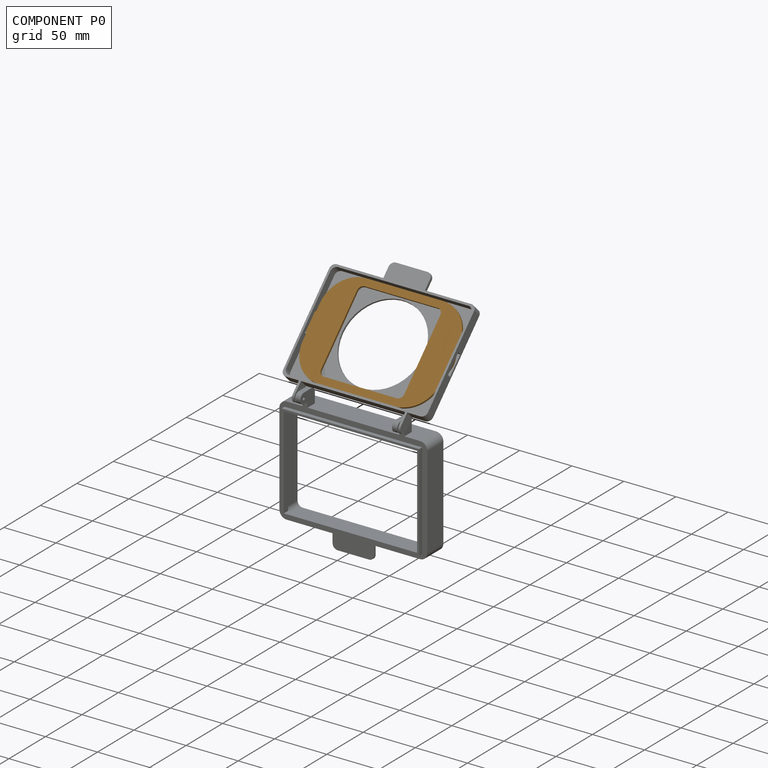
[diagram: component P0 — assembled]
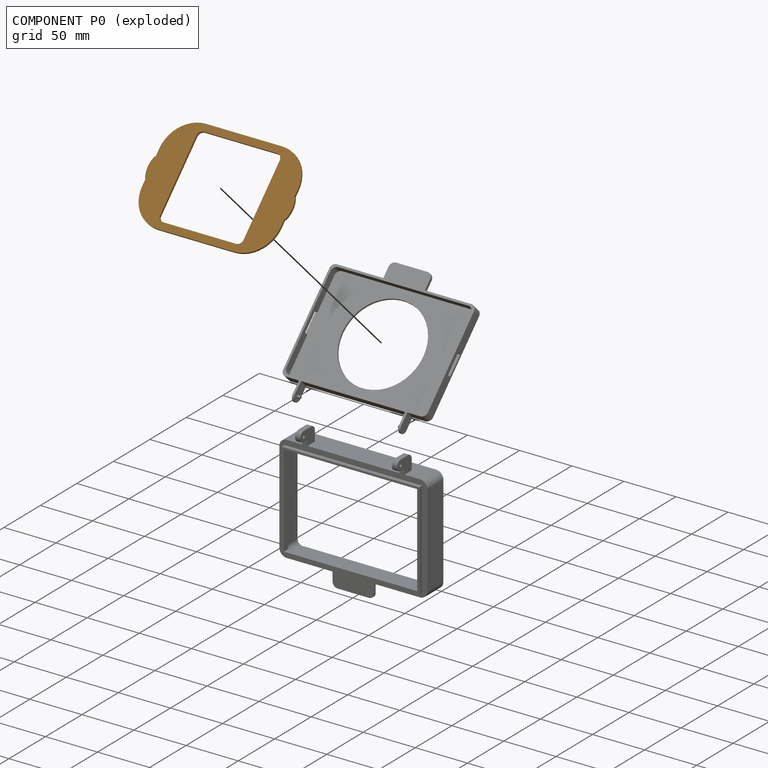
[diagram: component P0 — exploded]
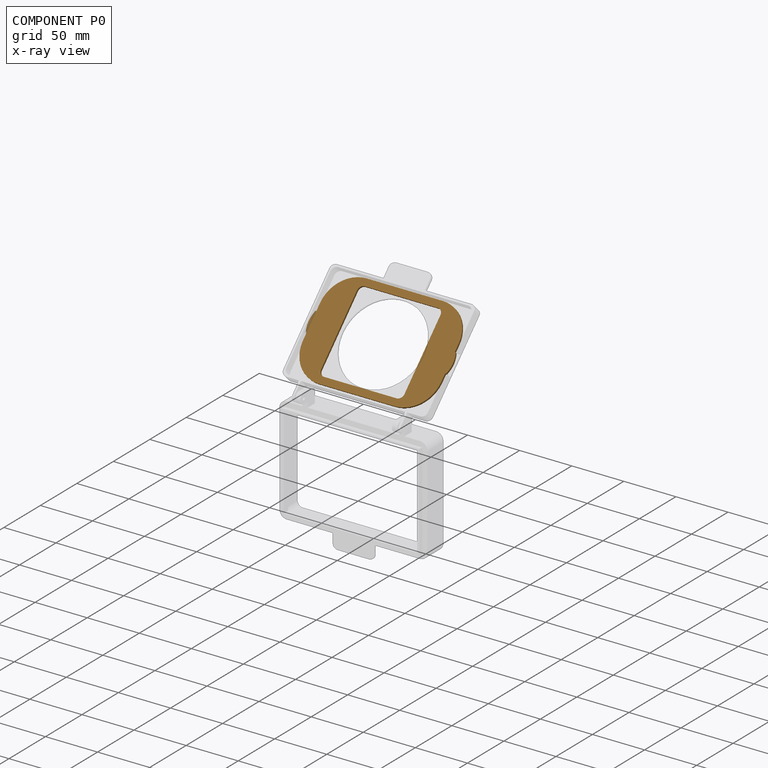
[diagram: component P0 — x-ray view]
COMPONENT P0 — geometry summary (no construction recipe available for this part):
  bounding box: 138.6 x 93.5 x 2.0 mm
  B-rep topology: 1 solid, 26 faces, 144 edges
  volume: 10732 mm^3 (41% of its bounding box)
  symmetry: 2-fold rotationally symmetric about the x axis; 2-fold rotationally symmetric about the y axis; 2-fold rotationally symmetric about the z axis; mirror-symmetric across its x mid-plane, y mid-plane, z mid-plane
Held by: FASTENED mate "Fastened 1" to P2.
PROVENANCE & LICENSES
Assembly (occurrences, transforms, mates, per-part STEP geometry): AutoMate dataset, Zenodo record 7776208, CC0.
Construction recipes: CADFS (HuggingFace VladPyatov/CADFS, CC-BY-4.0, layered over the ABC dataset), FeatureScript reconstruction programs keyed by ABC model id.
Join: ABC meta listings map ABC model id -> Onshape documentId; within a shared document, parts are matched by geometric signature (bounding-box dims + volume at 0.1% relative tolerance, exact B-rep face/solid counts).
Verification: 2 of this assembly's 3 components carry a recipe attachment, and every attachment is mesh-verified: the CADFS STEP and the AutoMate member STEP were compared as meshes in their shared local frame (symmetric sampled-point-to-mesh distance); worst across the 2 attachments: below the mesh-comparison resolution (tessellation chordal tolerance ~0.294 mm) on a 196 mm part.
Renders: orthographic iso camera (az 35 / el 25); the floor grid conveys scale (grid pitch printed in each image; no ruler). In the exploded view each component is displaced by its stored offset vector: the offsets alone carry the explosion direction (mate normal/axis signs are not orientation cues and do not encode it), and separation distances are assigned per mate-chain, not proportionally to assembly-order depth.
